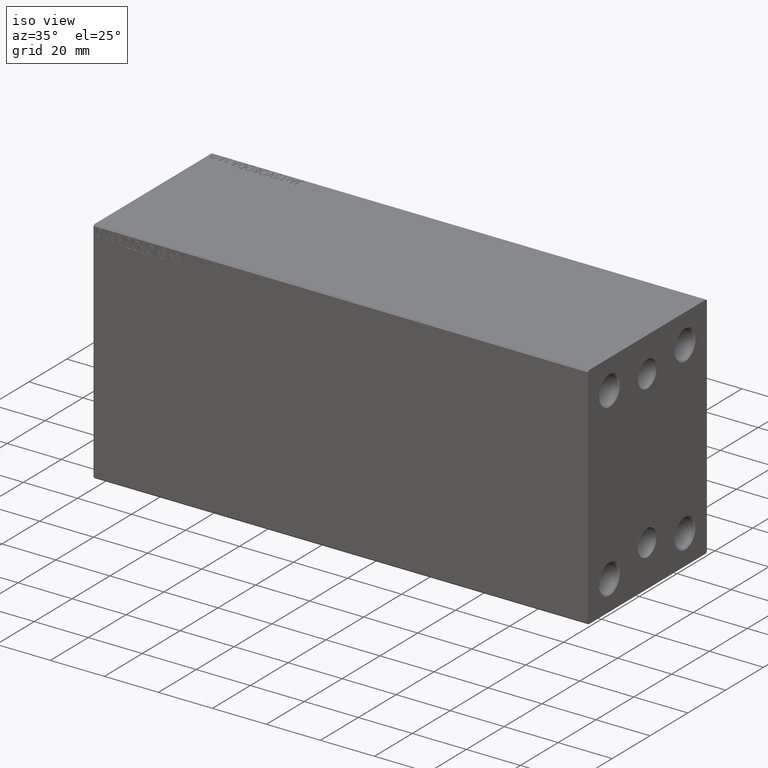
[diagram: clean part render]
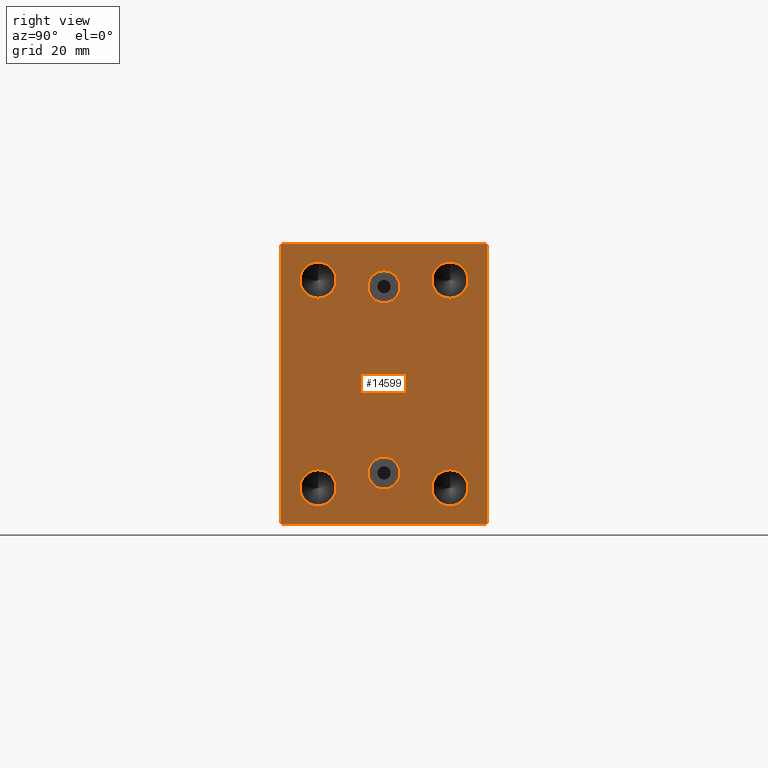
[diagram: tour spotlight — one face highlighted and labeled with its STEP entity id]
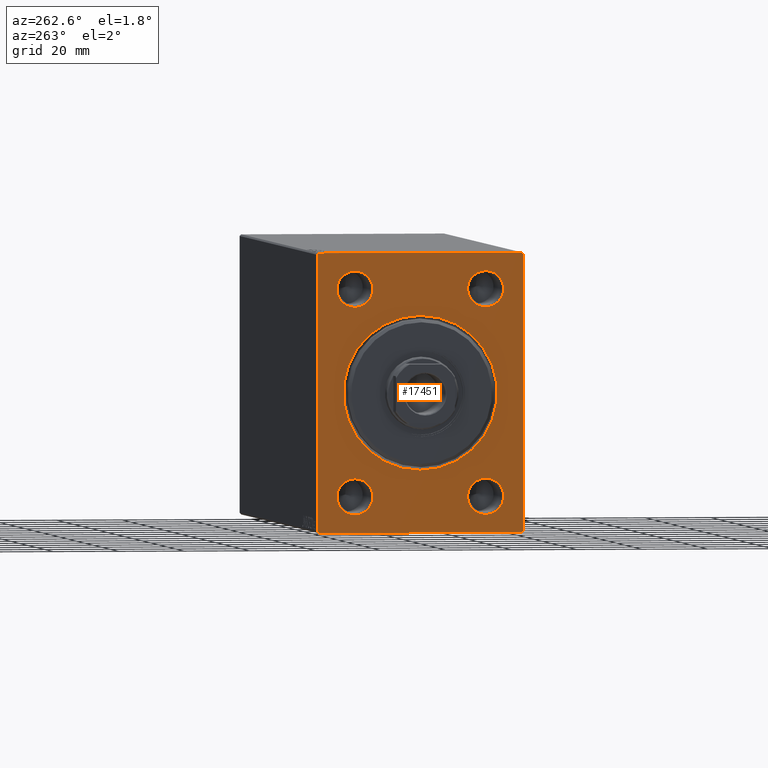
[diagram: tour spotlight — one face highlighted and labeled with its STEP entity id]
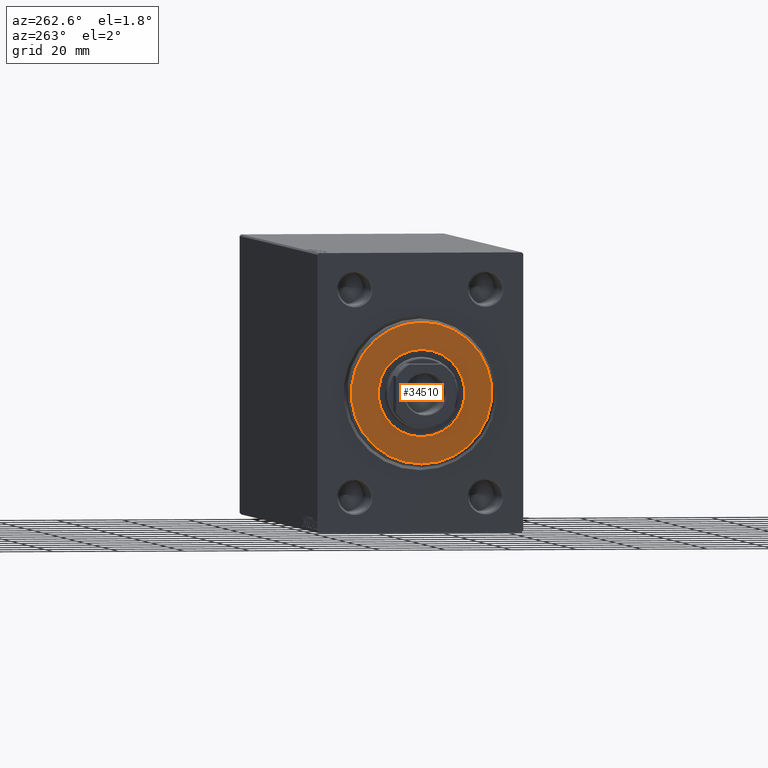
[diagram: tour spotlight — one face highlighted and labeled with its STEP entity id]
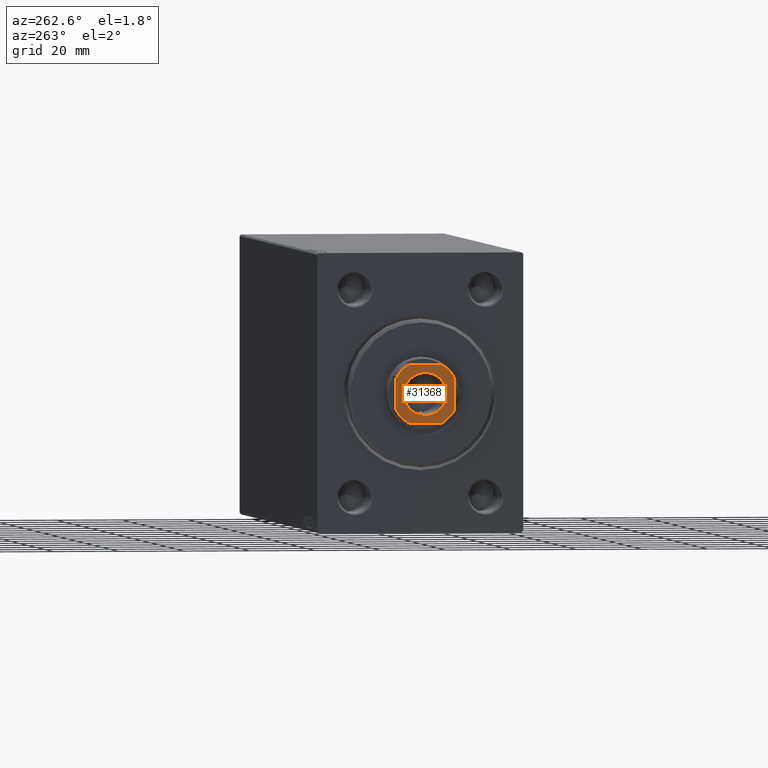
[diagram: tour spotlight — one face highlighted and labeled with its STEP entity id]
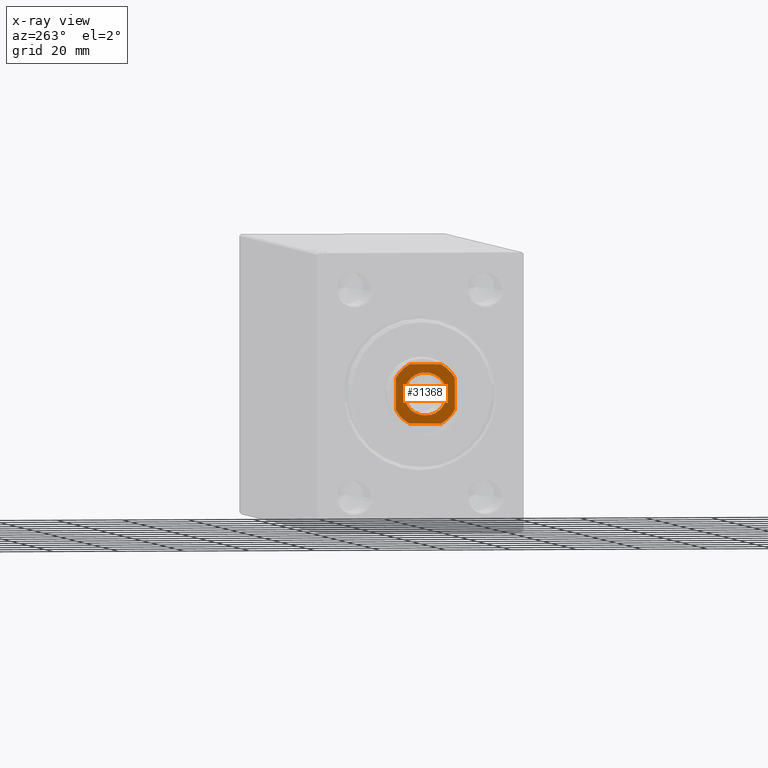
[diagram: x-ray of the same camera — body ghosted, this tour face saturated]
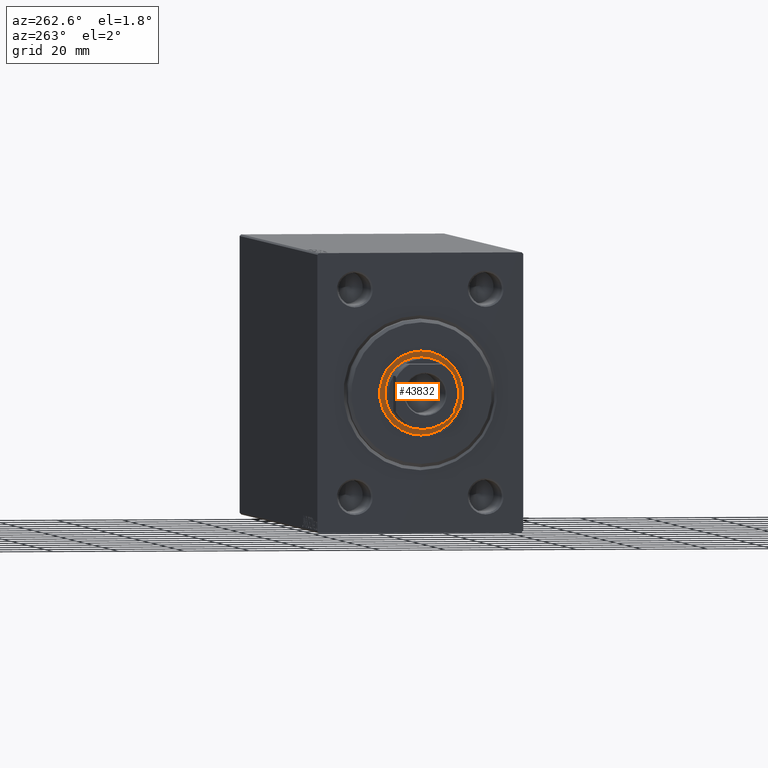
[diagram: tour spotlight — one face highlighted and labeled with its STEP entity id]
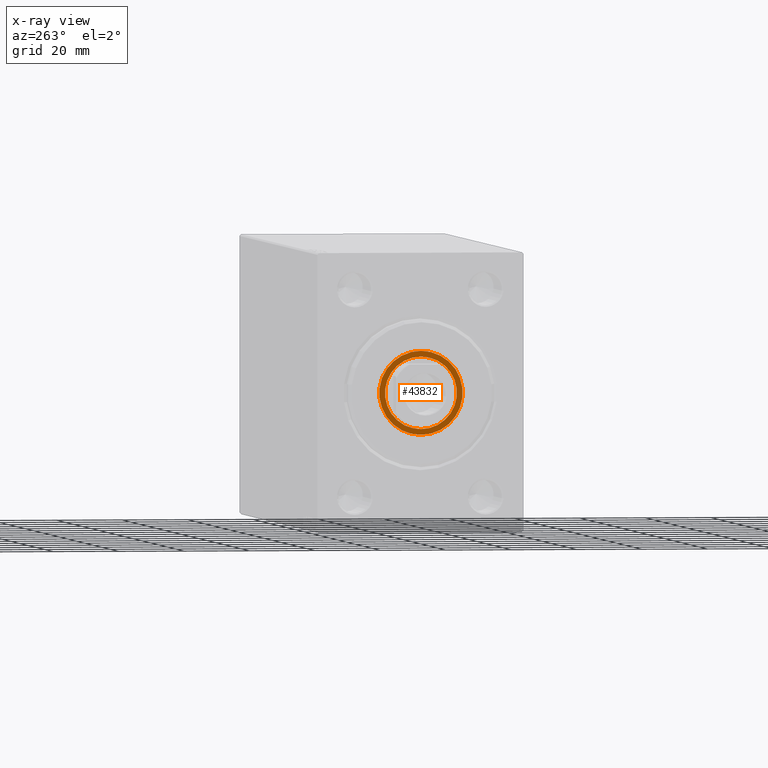
[diagram: x-ray of the same camera — body ghosted, this tour face saturated]
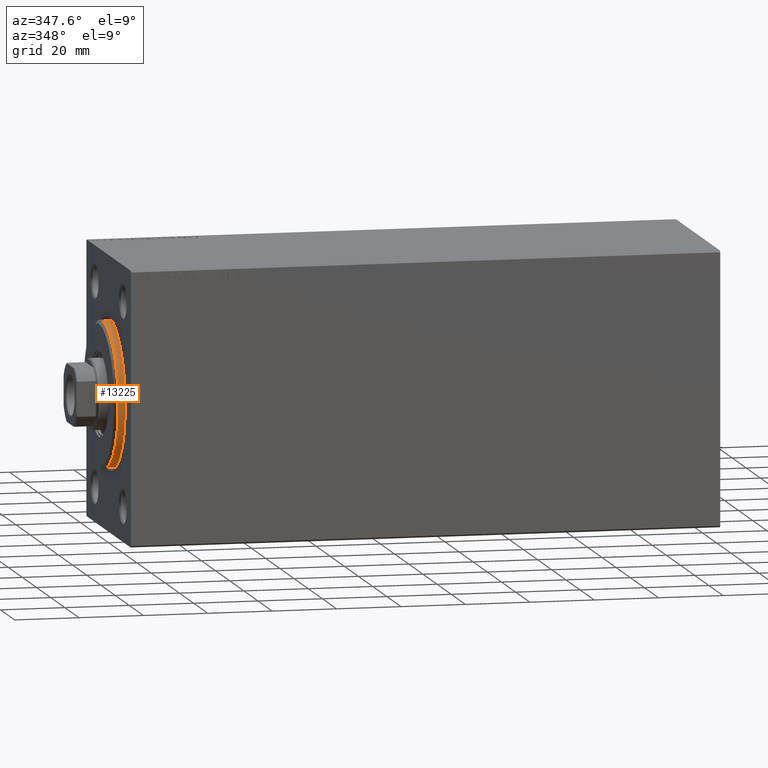
[diagram: tour spotlight — one face highlighted and labeled with its STEP entity id]
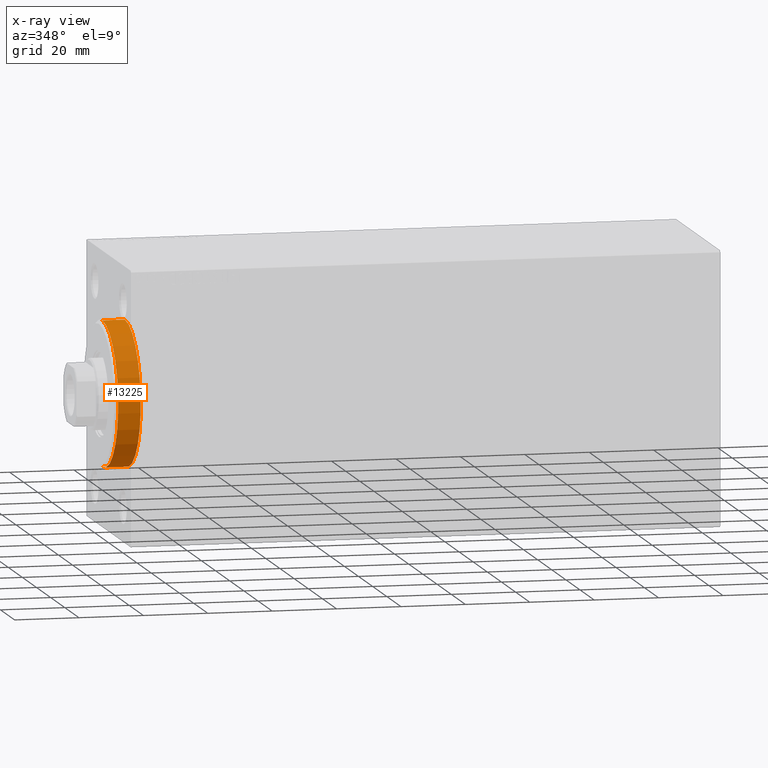
[diagram: x-ray of the same camera — body ghosted, this tour face saturated]
A machine part: a face-by-face anatomy tour. The part has 877 B-rep faces; the first image is the clean iso view, then the 6 largest visible faces are spotlighted one at a time (largest first), each with its STEP entity span.

Face 1 — right view, entity #14599. In plain terms, the highlighted planar face has unit normal (1, 0, 0).
Definition (entity closure, byte-faithful):
#729 = DIRECTION ( 'NONE',  ( 0.000000000000000000, 0.000000000000000000, -1.000000000000000000 ) ) ;
#748 = AXIS2_PLACEMENT_3D ( 'NONE', #35599, #25973, #32681 ) ;
#1002 = CARTESIAN_POINT ( 'NONE',  ( 183.0000000000000000, 31.50000000000000000, 42.00000000000002132 ) ) ;
#1151 = AXIS2_PLACEMENT_3D ( 'NONE', #37452, #17352, #10003 ) ;
#1223 = CARTESIAN_POINT ( 'NONE',  ( 183.0000000000000000, -2.976515330312223011E-15, 34.35999999999999233 ) ) ;
#1357 = FACE_OUTER_BOUND ( 'NONE', #3738, .T. ) ;
#1888 = EDGE_CURVE ( 'NONE', #39691, #18326, #30732, .T. ) ;
#1951 = ORIENTED_EDGE ( 'NONE', *, *, #32137, .T. ) ;
#2571 = ORIENTED_EDGE ( 'NONE', *, *, #25615, .F. ) ;
#2636 = CARTESIAN_POINT ( 'NONE',  ( 183.0000000000000000, 3.306546357697854128E-15, -27.00000000000000355 ) ) ;
#2657 = CARTESIAN_POINT ( 'NONE',  ( 183.0000000000000000, 31.50000000000000000, 42.49999999999999289 ) ) ;
#2726 = AXIS2_PLACEMENT_3D ( 'NONE', #13091, #36530, #33615 ) ;
#2873 = AXIS2_PLACEMENT_3D ( 'NONE', #2636, #37443, #30056 ) ;
#3104 = LINE ( 'NONE', #2657, #31882 ) ;
#3180 = EDGE_CURVE ( 'NONE', #4159, #18247, #12834, .T. ) ;
#3720 = CARTESIAN_POINT ( 'NONE',  ( 183.0000000000000000, -3.571693674697836683E-15, 24.63999999999999702 ) ) ;
#3738 = EDGE_LOOP ( 'NONE', ( #37354, #39658, #36337, #24594, #43874, #1951, #41649, #16622 ) ) ;
#3994 = VERTEX_POINT ( 'NONE', #42950 ) ;
#4159 = VERTEX_POINT ( 'NONE', #1002 ) ;
#4236 = DIRECTION ( 'NONE',  ( 1.000000000000000000, 0.000000000000000000, -0.000000000000000000 ) ) ;
#5171 = VERTEX_POINT ( 'NONE', #44030 ) ;
#5688 = EDGE_CURVE ( 'NONE', #5171, #27163, #13424, .T. ) ;
#6076 = AXIS2_PLACEMENT_3D ( 'NONE', #13662, #17667, #729 ) ;
#6119 = CARTESIAN_POINT ( 'NONE',  ( 183.0000000000000000, 19.99999999999999645, 37.00000000000003553 ) ) ;
#6139 = CARTESIAN_POINT ( 'NONE',  ( 183.0000000000000000, 36.75000000000001421, 36.75000000000001421 ) ) ;
#6179 = ORIENTED_EDGE ( 'NONE', *, *, #24145, .F. ) ;
#6894 = EDGE_CURVE ( 'NONE', #10062, #36795, #7732, .T. ) ;
#7080 = CARTESIAN_POINT ( 'NONE',  ( 183.0000000000000000, -31.50000000000000000, 42.49999999999998579 ) ) ;
#7229 = CARTESIAN_POINT ( 'NONE',  ( 183.0000000000000000, -31.50000000000000000, 42.00000000000001421 ) ) ;
#7732 = CIRCLE ( 'NONE', #15538, 5.500000000000032863 ) ;
#7792 = DIRECTION ( 'NONE',  ( 0.000000000000000000, 0.000000000000000000, 1.000000000000000000 ) ) ;
#7855 = EDGE_CURVE ( 'NONE', #10368, #24999, #14158, .T. ) ;
#8042 = FACE_BOUND ( 'NONE', #25956, .T. ) ;
#8639 = CARTESIAN_POINT ( 'NONE',  ( 183.0000000000000000, 31.00000000000002842, 42.49999999999999289 ) ) ;
#9264 = EDGE_CURVE ( 'NONE', #13183, #3994, #18411, .T. ) ;
#9358 = EDGE_LOOP ( 'NONE', ( #23334, #38606 ) ) ;
#9440 = CARTESIAN_POINT ( 'NONE',  ( 183.0000000000000000, 19.99999999999999645, -31.50000000000000000 ) ) ;
#10003 = DIRECTION ( 'NONE',  ( 0.000000000000000000, 0.000000000000000000, -1.000000000000000000 ) ) ;
#10062 = VERTEX_POINT ( 'NONE', #19130 ) ;
#10368 = VERTEX_POINT ( 'NONE', #40218 ) ;
#10817 = VECTOR ( 'NONE', #35415, 999.9999999999998863 ) ;
#11023 = CARTESIAN_POINT ( 'NONE',  ( 183.0000000000000000, 19.99999999999999645, -31.50000000000000000 ) ) ;
#11150 = CARTESIAN_POINT ( 'NONE',  ( 183.0000000000000000, 3.306546357697854128E-15, -27.00000000000000355 ) ) ;
#11184 = VERTEX_POINT ( 'NONE', #1223 ) ;
#11404 = FACE_BOUND ( 'NONE', #33450, .T. ) ;
#11445 = CIRCLE ( 'NONE', #748, 5.500000000000032863 ) ;
#11615 = CARTESIAN_POINT ( 'NONE',  ( 183.0000000000000000, 0.000000000000000000, 0.000000000000000000 ) ) ;
#11658 = CARTESIAN_POINT ( 'NONE',  ( 183.0000000000000000, -31.50000000000000000, -42.50000000000000711 ) ) ;
#11667 = DIRECTION ( 'NONE',  ( 0.000000000000000000, 0.000000000000000000, -1.000000000000000000 ) ) ;
#12638 = VERTEX_POINT ( 'NONE', #38562 ) ;
#12806 = VERTEX_POINT ( 'NONE', #16857 ) ;
#12834 = LINE ( 'NONE', #6139, #42608 ) ;
#13091 = CARTESIAN_POINT ( 'NONE',  ( 183.0000000000000000, -20.00000000000000355, -31.50000000000000000 ) ) ;
#13183 = VERTEX_POINT ( 'NONE', #27510 ) ;
#13424 = CIRCLE ( 'NONE', #2726, 5.500000000000032863 ) ;
#13602 = CIRCLE ( 'NONE', #17169, 4.859999999999995879 ) ;
#13662 = CARTESIAN_POINT ( 'NONE',  ( 183.0000000000000000, -20.00000000000000355, 31.50000000000000000 ) ) ;
#13762 = VERTEX_POINT ( 'NONE', #3720 ) ;
#14158 = CIRCLE ( 'NONE', #2873, 4.859999999999995879 ) ;
#14212 = EDGE_CURVE ( 'NONE', #12806, #36546, #22084, .T. ) ;
#14561 = DIRECTION ( 'NONE',  ( 0.000000000000000000, 1.000000000000000000, 0.000000000000000000 ) ) ;
#14599 = ADVANCED_FACE ( 'NONE', ( #11404, #25415, #24989, #8042, #21630, #35258, #1357 ), #14950, .T. ) ;
#14790 = DIRECTION ( 'NONE',  ( 1.000000000000000000, -0.000000000000000000, -0.000000000000000000 ) ) ;
#14851 = EDGE_CURVE ( 'NONE', #36795, #10062, #11445, .T. ) ;
#14950 = PLANE ( 'NONE',  #27826 ) ;
#15306 = DIRECTION ( 'NONE',  ( 0.000000000000000000, 0.000000000000000000, -1.000000000000000000 ) ) ;
#15538 = AXIS2_PLACEMENT_3D ( 'NONE', #33563, #33119, #36698 ) ;
#15982 = CARTESIAN_POINT ( 'NONE',  ( 183.0000000000000000, -31.00000000000000000, -42.50000000000000711 ) ) ;
#16239 = EDGE_CURVE ( 'NONE', #24999, #10368, #13602, .T. ) ;
#16240 = ORIENTED_EDGE ( 'NONE', *, *, #7855, .F. ) ;
#16530 = CARTESIAN_POINT ( 'NONE',  ( 183.0000000000000000, -20.00000000000000355, -31.50000000000000000 ) ) ;
#16622 = ORIENTED_EDGE ( 'NONE', *, *, #3180, .T. ) ;
#16857 = CARTESIAN_POINT ( 'NONE',  ( 183.0000000000000000, -20.00000000000000355, 37.00000000000003553 ) ) ;
#16919 = EDGE_CURVE ( 'NONE', #12638, #4159, #32537, .T. ) ;
#17169 = AXIS2_PLACEMENT_3D ( 'NONE', #11150, #4236, #7792 ) ;
#17352 = DIRECTION ( 'NONE',  ( 1.000000000000000000, 0.000000000000000000, 0.000000000000000000 ) ) ;
#17667 = DIRECTION ( 'NONE',  ( 1.000000000000000000, -0.000000000000000000, -0.000000000000000000 ) ) ;
#17703 = DIRECTION ( 'NONE',  ( 0.000000000000000000, 0.000000000000000000, -1.000000000000000000 ) ) ;
#18201 = EDGE_CURVE ( 'NONE', #18326, #22956, #22005, .T. ) ;
#18247 = VERTEX_POINT ( 'NONE', #8639 ) ;
#18326 = VERTEX_POINT ( 'NONE', #30255 ) ;
#18411 = CIRCLE ( 'NONE', #21963, 5.500000000000032863 ) ;
#18538 = CARTESIAN_POINT ( 'NONE',  ( 183.0000000000000000, 36.75000000000001421, -36.75000000000001421 ) ) ;
#18670 = CARTESIAN_POINT ( 'NONE',  ( 183.0000000000000000, -36.75000000000022737, -36.74999999999971578 ) ) ;
#19130 = CARTESIAN_POINT ( 'NONE',  ( 183.0000000000000000, 19.99999999999999645, 25.99999999999996447 ) ) ;
#19366 = ORIENTED_EDGE ( 'NONE', *, *, #34582, .F. ) ;
#19464 = AXIS2_PLACEMENT_3D ( 'NONE', #29347, #36729, #15306 ) ;
#19585 = DIRECTION ( 'NONE',  ( 0.000000000000000000, -1.000000000000000000, -1.101411730778925171E-16 ) ) ;
#19725 = DIRECTION ( 'NONE',  ( -0.000000000000000000, -0.7071067811865474617, 0.7071067811865474617 ) ) ;
#20135 = AXIS2_PLACEMENT_3D ( 'NONE', #16530, #40409, #43532 ) ;
#21210 = EDGE_LOOP ( 'NONE', ( #2571, #31654 ) ) ;
#21468 = CARTESIAN_POINT ( 'NONE',  ( 183.0000000000000000, -20.00000000000000355, 31.50000000000000000 ) ) ;
#21630 = FACE_BOUND ( 'NONE', #21210, .T. ) ;
#21963 = AXIS2_PLACEMENT_3D ( 'NONE', #9440, #40010, #23480 ) ;
#22005 = LINE ( 'NONE', #18670, #10817 ) ;
#22084 = CIRCLE ( 'NONE', #31393, 5.500000000000032863 ) ;
#22956 = VERTEX_POINT ( 'NONE', #15982 ) ;
#23334 = ORIENTED_EDGE ( 'NONE', *, *, #9264, .F. ) ;
#23480 = DIRECTION ( 'NONE',  ( 0.000000000000000000, 0.000000000000000000, -1.000000000000000000 ) ) ;
#24145 = EDGE_CURVE ( 'NONE', #13762, #11184, #42984, .T. ) ;
#24252 = ORIENTED_EDGE ( 'NONE', *, *, #16239, .F. ) ;
#24457 = CARTESIAN_POINT ( 'NONE',  ( 183.0000000000000000, -20.00000000000000355, 25.99999999999996447 ) ) ;
#24478 = ORIENTED_EDGE ( 'NONE', *, *, #6894, .F. ) ;
#24594 = ORIENTED_EDGE ( 'NONE', *, *, #18201, .T. ) ;
#24989 = FACE_BOUND ( 'NONE', #36924, .T. ) ;
#24999 = VERTEX_POINT ( 'NONE', #42753 ) ;
#25273 = VECTOR ( 'NONE', #37754, 1000.000000000000114 ) ;
#25302 = CIRCLE ( 'NONE', #6076, 5.500000000000032863 ) ;
#25415 = FACE_BOUND ( 'NONE', #34561, .T. ) ;
#25510 = CARTESIAN_POINT ( 'NONE',  ( 183.0000000000000000, -31.00000000000002842, 42.49999999999998579 ) ) ;
#25615 = EDGE_CURVE ( 'NONE', #27163, #5171, #37984, .T. ) ;
#25956 = EDGE_LOOP ( 'NONE', ( #34969, #28605 ) ) ;
#25973 = DIRECTION ( 'NONE',  ( 1.000000000000000000, -0.000000000000000000, -0.000000000000000000 ) ) ;
#26713 = VERTEX_POINT ( 'NONE', #26871 ) ;
#26871 = CARTESIAN_POINT ( 'NONE',  ( 183.0000000000000000, 31.00000000000001421, -42.50000000000000711 ) ) ;
#27163 = VERTEX_POINT ( 'NONE', #32269 ) ;
#27510 = CARTESIAN_POINT ( 'NONE',  ( 183.0000000000000000, 19.99999999999999645, -25.99999999999996447 ) ) ;
#27580 = AXIS2_PLACEMENT_3D ( 'NONE', #11023, #14790, #17703 ) ;
#27826 = AXIS2_PLACEMENT_3D ( 'NONE', #11615, #28564, #42174 ) ;
#27920 = LINE ( 'NONE', #28136, #25273 ) ;
#28136 = CARTESIAN_POINT ( 'NONE',  ( 183.0000000000000000, -36.75000000000001421, 36.75000000000001421 ) ) ;
#28564 = DIRECTION ( 'NONE',  ( 1.000000000000000000, 0.000000000000000000, 0.000000000000000000 ) ) ;
#28605 = ORIENTED_EDGE ( 'NONE', *, *, #32044, .F. ) ;
#29347 = CARTESIAN_POINT ( 'NONE',  ( 183.0000000000000000, -3.571693674697836683E-15, 29.50000000000000000 ) ) ;
#30056 = DIRECTION ( 'NONE',  ( 0.000000000000000000, 0.000000000000000000, 1.000000000000000000 ) ) ;
#30255 = CARTESIAN_POINT ( 'NONE',  ( 183.0000000000000000, -31.50000000000000000, -42.00000000000000000 ) ) ;
#30732 = LINE ( 'NONE', #7080, #39794 ) ;
#31393 = AXIS2_PLACEMENT_3D ( 'NONE', #21468, #42220, #11667 ) ;
#31593 = EDGE_CURVE ( 'NONE', #37657, #39691, #27920, .T. ) ;
#31654 = ORIENTED_EDGE ( 'NONE', *, *, #5688, .F. ) ;
#31724 = VECTOR ( 'NONE', #32160, 1000.000000000000114 ) ;
#31849 = CIRCLE ( 'NONE', #27580, 5.500000000000032863 ) ;
#31882 = VECTOR ( 'NONE', #19585, 1000.000000000000000 ) ;
#32044 = EDGE_CURVE ( 'NONE', #36546, #12806, #25302, .T. ) ;
#32137 = EDGE_CURVE ( 'NONE', #26713, #12638, #35723, .T. ) ;
#32160 = DIRECTION ( 'NONE',  ( -0.000000000000000000, 0.7071067811865474617, 0.7071067811865474617 ) ) ;
#32269 = CARTESIAN_POINT ( 'NONE',  ( 183.0000000000000000, -20.00000000000000355, -25.99999999999996447 ) ) ;
#32537 = LINE ( 'NONE', #35893, #42112 ) ;
#32681 = DIRECTION ( 'NONE',  ( 0.000000000000000000, 0.000000000000000000, -1.000000000000000000 ) ) ;
#33119 = DIRECTION ( 'NONE',  ( 1.000000000000000000, -0.000000000000000000, -0.000000000000000000 ) ) ;
#33450 = EDGE_LOOP ( 'NONE', ( #6179, #19366 ) ) ;
#33563 = CARTESIAN_POINT ( 'NONE',  ( 183.0000000000000000, 19.99999999999999645, 31.50000000000000000 ) ) ;
#33615 = DIRECTION ( 'NONE',  ( 0.000000000000000000, 0.000000000000000000, -1.000000000000000000 ) ) ;
#34561 = EDGE_LOOP ( 'NONE', ( #24252, #16240 ) ) ;
#34582 = EDGE_CURVE ( 'NONE', #11184, #13762, #42463, .T. ) ;
#34969 = ORIENTED_EDGE ( 'NONE', *, *, #14212, .F. ) ;
#35258 = FACE_BOUND ( 'NONE', #9358, .T. ) ;
#35415 = DIRECTION ( 'NONE',  ( -0.000000000000000000, 0.7071067811865425767, -0.7071067811865525687 ) ) ;
#35599 = CARTESIAN_POINT ( 'NONE',  ( 183.0000000000000000, 19.99999999999999645, 31.50000000000000000 ) ) ;
#35723 = LINE ( 'NONE', #18538, #31724 ) ;
#35893 = CARTESIAN_POINT ( 'NONE',  ( 183.0000000000000000, 31.50000000000001421, -42.50000000000000711 ) ) ;
#35963 = LINE ( 'NONE', #11658, #41219 ) ;
#36337 = ORIENTED_EDGE ( 'NONE', *, *, #1888, .T. ) ;
#36530 = DIRECTION ( 'NONE',  ( 1.000000000000000000, -0.000000000000000000, -0.000000000000000000 ) ) ;
#36546 = VERTEX_POINT ( 'NONE', #24457 ) ;
#36698 = DIRECTION ( 'NONE',  ( 0.000000000000000000, 0.000000000000000000, -1.000000000000000000 ) ) ;
#36729 = DIRECTION ( 'NONE',  ( 1.000000000000000000, 0.000000000000000000, 0.000000000000000000 ) ) ;
#36795 = VERTEX_POINT ( 'NONE', #6119 ) ;
#36924 = EDGE_LOOP ( 'NONE', ( #40527, #24478 ) ) ;
#36939 = EDGE_CURVE ( 'NONE', #3994, #13183, #31849, .T. ) ;
#37354 = ORIENTED_EDGE ( 'NONE', *, *, #38271, .T. ) ;
#37440 = DIRECTION ( 'NONE',  ( 0.000000000000000000, 0.000000000000000000, -1.000000000000000000 ) ) ;
#37443 = DIRECTION ( 'NONE',  ( 1.000000000000000000, 0.000000000000000000, -0.000000000000000000 ) ) ;
#37452 = CARTESIAN_POINT ( 'NONE',  ( 183.0000000000000000, -3.571693674697836683E-15, 29.50000000000000000 ) ) ;
#37657 = VERTEX_POINT ( 'NONE', #25510 ) ;
#37754 = DIRECTION ( 'NONE',  ( 0.000000000000000000, -0.7071067811865474617, -0.7071067811865474617 ) ) ;
#37984 = CIRCLE ( 'NONE', #20135, 5.500000000000032863 ) ;
#38271 = EDGE_CURVE ( 'NONE', #18247, #37657, #3104, .T. ) ;
#38382 = DIRECTION ( 'NONE',  ( 0.000000000000000000, -1.632680918566406547E-16, 1.000000000000000000 ) ) ;
#38562 = CARTESIAN_POINT ( 'NONE',  ( 183.0000000000000000, 31.50000000000001421, -42.00000000000000711 ) ) ;
#38606 = ORIENTED_EDGE ( 'NONE', *, *, #36939, .F. ) ;
#39658 = ORIENTED_EDGE ( 'NONE', *, *, #31593, .T. ) ;
#39691 = VERTEX_POINT ( 'NONE', #7229 ) ;
#39794 = VECTOR ( 'NONE', #37440, 1000.000000000000000 ) ;
#40010 = DIRECTION ( 'NONE',  ( 1.000000000000000000, -0.000000000000000000, -0.000000000000000000 ) ) ;
#40218 = CARTESIAN_POINT ( 'NONE',  ( 183.0000000000000000, 3.901724702083467405E-15, -22.14000000000000767 ) ) ;
#40409 = DIRECTION ( 'NONE',  ( 1.000000000000000000, -0.000000000000000000, -0.000000000000000000 ) ) ;
#40527 = ORIENTED_EDGE ( 'NONE', *, *, #14851, .F. ) ;
#41219 = VECTOR ( 'NONE', #14561, 1000.000000000000000 ) ;
#41649 = ORIENTED_EDGE ( 'NONE', *, *, #16919, .T. ) ;
#42112 = VECTOR ( 'NONE', #38382, 1000.000000000000000 ) ;
#42174 = DIRECTION ( 'NONE',  ( 0.000000000000000000, 0.000000000000000000, -1.000000000000000000 ) ) ;
#42220 = DIRECTION ( 'NONE',  ( 1.000000000000000000, -0.000000000000000000, -0.000000000000000000 ) ) ;
#42463 = CIRCLE ( 'NONE', #1151, 4.859999999999999432 ) ;
#42608 = VECTOR ( 'NONE', #19725, 1000.000000000000114 ) ;
#42753 = CARTESIAN_POINT ( 'NONE',  ( 183.0000000000000000, 3.306546357697854128E-15, -31.85999999999999943 ) ) ;
#42950 = CARTESIAN_POINT ( 'NONE',  ( 183.0000000000000000, 19.99999999999999645, -37.00000000000003553 ) ) ;
#42984 = CIRCLE ( 'NONE', #19464, 4.859999999999999432 ) ;
#43532 = DIRECTION ( 'NONE',  ( 0.000000000000000000, 0.000000000000000000, -1.000000000000000000 ) ) ;
#43653 = EDGE_CURVE ( 'NONE', #22956, #26713, #35963, .T. ) ;
#43874 = ORIENTED_EDGE ( 'NONE', *, *, #43653, .T. ) ;
#44030 = CARTESIAN_POINT ( 'NONE',  ( 183.0000000000000000, -20.00000000000000355, -37.00000000000003553 ) ) ;

Face 2 — auxiliary view, entity #17451. In plain terms, the highlighted planar face has unit normal (1, 0, 0).
Definition (entity closure, byte-faithful):
#392 = DIRECTION ( 'NONE',  ( -0.000000000000000000, 0.7071067811865474617, 0.7071067811865474617 ) ) ;
#755 = DIRECTION ( 'NONE',  ( 1.000000000000000000, 0.000000000000000000, 0.000000000000000000 ) ) ;
#886 = CARTESIAN_POINT ( 'NONE',  ( 0.000000000000000000, 0.000000000000000000, 0.000000000000000000 ) ) ;
#2684 = EDGE_CURVE ( 'NONE', #39214, #24823, #6292, .T. ) ;
#2755 = AXIS2_PLACEMENT_3D ( 'NONE', #41979, #17447, #24583 ) ;
#2870 = ORIENTED_EDGE ( 'NONE', *, *, #20777, .T. ) ;
#2989 = CARTESIAN_POINT ( 'NONE',  ( 0.000000000000000000, 31.50000000000000000, 42.00000000000002132 ) ) ;
#2996 = CARTESIAN_POINT ( 'NONE',  ( 0.000000000000000000, -20.00000000000000355, 25.99999999999996803 ) ) ;
#3569 = EDGE_CURVE ( 'NONE', #4251, #39442, #32005, .T. ) ;
#3758 = CARTESIAN_POINT ( 'NONE',  ( 0.000000000000000000, 19.99999999999999645, -25.99999999999996803 ) ) ;
#3797 = DIRECTION ( 'NONE',  ( 1.000000000000000000, 0.000000000000000000, 0.000000000000000000 ) ) ;
#4251 = VERTEX_POINT ( 'NONE', #28211 ) ;
#4876 = DIRECTION ( 'NONE',  ( 1.000000000000000000, 0.000000000000000000, 0.000000000000000000 ) ) ;
#4887 = DIRECTION ( 'NONE',  ( 1.000000000000000000, 0.000000000000000000, 0.000000000000000000 ) ) ;
#4988 = DIRECTION ( 'NONE',  ( -0.000000000000000000, -0.7071067811865425767, 0.7071067811865525687 ) ) ;
#5203 = CARTESIAN_POINT ( 'NONE',  ( 0.000000000000000000, 31.50000000000001421, -42.00000000000000711 ) ) ;
#5428 = CARTESIAN_POINT ( 'NONE',  ( 0.000000000000000000, 19.99999999999999645, -31.50000000000000000 ) ) ;
#5432 = FACE_BOUND ( 'NONE', #26366, .T. ) ;
#5437 = CARTESIAN_POINT ( 'NONE',  ( 0.000000000000000000, 19.99999999999999645, -37.00000000000003553 ) ) ;
#5573 = CIRCLE ( 'NONE', #11309, 5.500000000000032863 ) ;
#5626 = ORIENTED_EDGE ( 'NONE', *, *, #11653, .T. ) ;
#5720 = EDGE_CURVE ( 'NONE', #32402, #24830, #5573, .T. ) ;
#5773 = ORIENTED_EDGE ( 'NONE', *, *, #15521, .F. ) ;
#5792 = AXIS2_PLACEMENT_3D ( 'NONE', #35014, #4887, #22260 ) ;
#6292 = CIRCLE ( 'NONE', #14862, 23.49999999999996092 ) ;
#6343 = VECTOR ( 'NONE', #38814, 1000.000000000000114 ) ;
#6935 = CIRCLE ( 'NONE', #20455, 5.500000000000032863 ) ;
#7207 = DIRECTION ( 'NONE',  ( 0.000000000000000000, 0.000000000000000000, -1.000000000000000000 ) ) ;
#7863 = CARTESIAN_POINT ( 'NONE',  ( 0.000000000000000000, -20.00000000000000355, 31.50000000000000000 ) ) ;
#8274 = EDGE_CURVE ( 'NONE', #34594, #42553, #8564, .T. ) ;
#8372 = CARTESIAN_POINT ( 'NONE',  ( 0.000000000000000000, -20.00000000000000355, -25.99999999999996803 ) ) ;
#8399 = DIRECTION ( 'NONE',  ( 0.000000000000000000, 0.000000000000000000, -1.000000000000000000 ) ) ;
#8564 = CIRCLE ( 'NONE', #22081, 5.500000000000032863 ) ;
#8838 = DIRECTION ( 'NONE',  ( 1.000000000000000000, 0.000000000000000000, 0.000000000000000000 ) ) ;
#8983 = EDGE_CURVE ( 'NONE', #34939, #30421, #19963, .T. ) ;
#10151 = ORIENTED_EDGE ( 'NONE', *, *, #11474, .T. ) ;
#10334 = ORIENTED_EDGE ( 'NONE', *, *, #8983, .F. ) ;
#10596 = LINE ( 'NONE', #41149, #33529 ) ;
#10685 = CARTESIAN_POINT ( 'NONE',  ( 0.000000000000000000, 19.99999999999999645, 25.99999999999996803 ) ) ;
#11039 = DIRECTION ( 'NONE',  ( 0.000000000000000000, -1.000000000000000000, -1.101411730778925171E-16 ) ) ;
#11157 = CARTESIAN_POINT ( 'NONE',  ( 0.000000000000000000, 19.99999999999999645, 37.00000000000003553 ) ) ;
#11309 = AXIS2_PLACEMENT_3D ( 'NONE', #40531, #30262, #29367 ) ;
#11474 = EDGE_CURVE ( 'NONE', #24830, #32402, #39821, .T. ) ;
#11543 = EDGE_CURVE ( 'NONE', #40919, #12704, #14280, .T. ) ;
#11592 = LINE ( 'NONE', #22046, #6343 ) ;
#11653 = EDGE_CURVE ( 'NONE', #23295, #30421, #11592, .T. ) ;
#12348 = FACE_BOUND ( 'NONE', #41626, .T. ) ;
#12446 = VERTEX_POINT ( 'NONE', #32386 ) ;
#12704 = VERTEX_POINT ( 'NONE', #37683 ) ;
#12772 = CARTESIAN_POINT ( 'NONE',  ( 0.000000000000000000, -31.00000000000000000, -42.50000000000000711 ) ) ;
#13409 = AXIS2_PLACEMENT_3D ( 'NONE', #34355, #3797, #17389 ) ;
#13476 = ORIENTED_EDGE ( 'NONE', *, *, #42136, .T. ) ;
#13614 = DIRECTION ( 'NONE',  ( 1.000000000000000000, 0.000000000000000000, 0.000000000000000000 ) ) ;
#13798 = CARTESIAN_POINT ( 'NONE',  ( 0.000000000000000000, 2.877919977996275587E-15, -23.49999999999996092 ) ) ;
#13837 = ORIENTED_EDGE ( 'NONE', *, *, #18663, .T. ) ;
#13984 = VERTEX_POINT ( 'NONE', #40249 ) ;
#14112 = DIRECTION ( 'NONE',  ( 1.000000000000000000, 0.000000000000000000, 0.000000000000000000 ) ) ;
#14280 = LINE ( 'NONE', #27895, #41253 ) ;
#14615 = VECTOR ( 'NONE', #392, 1000.000000000000114 ) ;
#14862 = AXIS2_PLACEMENT_3D ( 'NONE', #886, #4876, #35664 ) ;
#15210 = DIRECTION ( 'NONE',  ( 0.000000000000000000, 0.000000000000000000, -1.000000000000000000 ) ) ;
#15466 = CARTESIAN_POINT ( 'NONE',  ( 0.000000000000000000, -31.50000000000000000, -42.00000000000000000 ) ) ;
#15521 = EDGE_CURVE ( 'NONE', #23295, #32353, #10596, .T. ) ;
#15544 = ORIENTED_EDGE ( 'NONE', *, *, #15655, .T. ) ;
#15655 = EDGE_CURVE ( 'NONE', #40919, #21155, #32211, .T. ) ;
#15895 = FACE_OUTER_BOUND ( 'NONE', #31575, .T. ) ;
#16115 = DIRECTION ( 'NONE',  ( 0.000000000000000000, 0.000000000000000000, -1.000000000000000000 ) ) ;
#16284 = DIRECTION ( 'NONE',  ( 0.000000000000000000, 0.000000000000000000, -1.000000000000000000 ) ) ;
#16344 = FACE_BOUND ( 'NONE', #38847, .T. ) ;
#16902 = EDGE_CURVE ( 'NONE', #24823, #39214, #22147, .T. ) ;
#17371 = CARTESIAN_POINT ( 'NONE',  ( 0.000000000000000000, 0.000000000000000000, 23.49999999999996092 ) ) ;
#17389 = DIRECTION ( 'NONE',  ( 0.000000000000000000, 0.000000000000000000, -1.000000000000000000 ) ) ;
#17447 = DIRECTION ( 'NONE',  ( 1.000000000000000000, 0.000000000000000000, 0.000000000000000000 ) ) ;
#17451 = ADVANCED_FACE ( 'NONE', ( #5432, #12348, #25941, #16344, #39569, #15895 ), #33083, .F. ) ;
#17995 = AXIS2_PLACEMENT_3D ( 'NONE', #25780, #8838, #8399 ) ;
#18155 = CARTESIAN_POINT ( 'NONE',  ( 0.000000000000000000, -31.00000000000000000, -42.50000000000000711 ) ) ;
#18663 = EDGE_CURVE ( 'NONE', #25345, #12446, #27204, .T. ) ;
#19027 = DIRECTION ( 'NONE',  ( 1.000000000000000000, 0.000000000000000000, 0.000000000000000000 ) ) ;
#19248 = VECTOR ( 'NONE', #43622, 1000.000000000000000 ) ;
#19924 = ORIENTED_EDGE ( 'NONE', *, *, #5720, .T. ) ;
#19963 = LINE ( 'NONE', #30006, #19248 ) ;
#20290 = CARTESIAN_POINT ( 'NONE',  ( 0.000000000000000000, 19.99999999999999645, 31.50000000000000000 ) ) ;
#20410 = CARTESIAN_POINT ( 'NONE',  ( 0.000000000000000000, 31.50000000000001421, -42.00000000000000711 ) ) ;
#20455 = AXIS2_PLACEMENT_3D ( 'NONE', #7863, #14112, #7207 ) ;
#20777 = EDGE_CURVE ( 'NONE', #42553, #34594, #25123, .T. ) ;
#21155 = VERTEX_POINT ( 'NONE', #15466 ) ;
#21703 = DIRECTION ( 'NONE',  ( 0.000000000000000000, -0.7071067811865474617, -0.7071067811865474617 ) ) ;
#21714 = DIRECTION ( 'NONE',  ( 0.000000000000000000, 0.000000000000000000, -1.000000000000000000 ) ) ;
#22046 = CARTESIAN_POINT ( 'NONE',  ( 0.000000000000000000, 31.00000000000002842, 42.49999999999999289 ) ) ;
#22081 = AXIS2_PLACEMENT_3D ( 'NONE', #5428, #25074, #21714 ) ;
#22147 = CIRCLE ( 'NONE', #5792, 23.49999999999996092 ) ;
#22260 = DIRECTION ( 'NONE',  ( 0.000000000000000000, 0.000000000000000000, -1.000000000000000000 ) ) ;
#22587 = CARTESIAN_POINT ( 'NONE',  ( 0.000000000000000000, 0.000000000000000000, 0.000000000000000000 ) ) ;
#22950 = EDGE_LOOP ( 'NONE', ( #33406, #2870 ) ) ;
#23295 = VERTEX_POINT ( 'NONE', #38197 ) ;
#23421 = CARTESIAN_POINT ( 'NONE',  ( 0.000000000000000000, -31.50000000000000000, 42.49999999999998579 ) ) ;
#23584 = EDGE_CURVE ( 'NONE', #13984, #21155, #40169, .T. ) ;
#24583 = DIRECTION ( 'NONE',  ( 0.000000000000000000, 0.000000000000000000, -1.000000000000000000 ) ) ;
#24823 = VERTEX_POINT ( 'NONE', #13798 ) ;
#24830 = VERTEX_POINT ( 'NONE', #10685 ) ;
#25074 = DIRECTION ( 'NONE',  ( 1.000000000000000000, 0.000000000000000000, 0.000000000000000000 ) ) ;
#25123 = CIRCLE ( 'NONE', #17995, 5.500000000000032863 ) ;
#25345 = VERTEX_POINT ( 'NONE', #2996 ) ;
#25366 = ORIENTED_EDGE ( 'NONE', *, *, #41485, .T. ) ;
#25400 = ORIENTED_EDGE ( 'NONE', *, *, #37840, .T. ) ;
#25716 = AXIS2_PLACEMENT_3D ( 'NONE', #22587, #19027, #16115 ) ;
#25780 = CARTESIAN_POINT ( 'NONE',  ( 0.000000000000000000, 19.99999999999999645, -31.50000000000000000 ) ) ;
#25941 = FACE_BOUND ( 'NONE', #27486, .T. ) ;
#26108 = VECTOR ( 'NONE', #21703, 1000.000000000000114 ) ;
#26244 = ORIENTED_EDGE ( 'NONE', *, *, #2684, .T. ) ;
#26366 = EDGE_LOOP ( 'NONE', ( #26244, #41342 ) ) ;
#27166 = LINE ( 'NONE', #37665, #14615 ) ;
#27204 = CIRCLE ( 'NONE', #37891, 5.500000000000032863 ) ;
#27486 = EDGE_LOOP ( 'NONE', ( #25400, #13837 ) ) ;
#27719 = AXIS2_PLACEMENT_3D ( 'NONE', #20290, #13614, #34143 ) ;
#27895 = CARTESIAN_POINT ( 'NONE',  ( 0.000000000000000000, -31.50000000000000000, -42.50000000000000711 ) ) ;
#28211 = CARTESIAN_POINT ( 'NONE',  ( 0.000000000000000000, -20.00000000000000355, -37.00000000000003553 ) ) ;
#28538 = VECTOR ( 'NONE', #4988, 999.9999999999998863 ) ;
#29054 = LINE ( 'NONE', #5203, #26108 ) ;
#29367 = DIRECTION ( 'NONE',  ( 0.000000000000000000, 0.000000000000000000, -1.000000000000000000 ) ) ;
#29826 = ORIENTED_EDGE ( 'NONE', *, *, #11543, .F. ) ;
#30006 = CARTESIAN_POINT ( 'NONE',  ( 0.000000000000000000, 31.50000000000001421, -42.50000000000000711 ) ) ;
#30262 = DIRECTION ( 'NONE',  ( 1.000000000000000000, 0.000000000000000000, 0.000000000000000000 ) ) ;
#30421 = VERTEX_POINT ( 'NONE', #2989 ) ;
#30519 = CIRCLE ( 'NONE', #13409, 5.500000000000032863 ) ;
#31575 = EDGE_LOOP ( 'NONE', ( #43584, #42492, #5773, #5626, #10334, #25366, #29826, #15544 ) ) ;
#31677 = EDGE_CURVE ( 'NONE', #13984, #32353, #27166, .T. ) ;
#32005 = CIRCLE ( 'NONE', #2755, 5.500000000000032863 ) ;
#32211 = LINE ( 'NONE', #18155, #28538 ) ;
#32353 = VERTEX_POINT ( 'NONE', #34139 ) ;
#32386 = CARTESIAN_POINT ( 'NONE',  ( 0.000000000000000000, -20.00000000000000355, 37.00000000000003553 ) ) ;
#32402 = VERTEX_POINT ( 'NONE', #11157 ) ;
#33083 = PLANE ( 'NONE',  #25716 ) ;
#33406 = ORIENTED_EDGE ( 'NONE', *, *, #8274, .T. ) ;
#33529 = VECTOR ( 'NONE', #11039, 1000.000000000000000 ) ;
#34139 = CARTESIAN_POINT ( 'NONE',  ( 0.000000000000000000, -31.00000000000002842, 42.49999999999998579 ) ) ;
#34143 = DIRECTION ( 'NONE',  ( 0.000000000000000000, 0.000000000000000000, -1.000000000000000000 ) ) ;
#34355 = CARTESIAN_POINT ( 'NONE',  ( 0.000000000000000000, -20.00000000000000355, -31.50000000000000000 ) ) ;
#34594 = VERTEX_POINT ( 'NONE', #3758 ) ;
#34939 = VERTEX_POINT ( 'NONE', #20410 ) ;
#35014 = CARTESIAN_POINT ( 'NONE',  ( 0.000000000000000000, 0.000000000000000000, 0.000000000000000000 ) ) ;
#35664 = DIRECTION ( 'NONE',  ( 0.000000000000000000, 0.000000000000000000, -1.000000000000000000 ) ) ;
#36099 = ORIENTED_EDGE ( 'NONE', *, *, #3569, .T. ) ;
#37665 = CARTESIAN_POINT ( 'NONE',  ( 0.000000000000000000, -31.50000000000000000, 42.00000000000001421 ) ) ;
#37683 = CARTESIAN_POINT ( 'NONE',  ( 0.000000000000000000, 31.00000000000001421, -42.50000000000000711 ) ) ;
#37840 = EDGE_CURVE ( 'NONE', #12446, #25345, #6935, .T. ) ;
#37891 = AXIS2_PLACEMENT_3D ( 'NONE', #38673, #755, #15210 ) ;
#38197 = CARTESIAN_POINT ( 'NONE',  ( 0.000000000000000000, 31.00000000000002842, 42.49999999999999289 ) ) ;
#38673 = CARTESIAN_POINT ( 'NONE',  ( 0.000000000000000000, -20.00000000000000355, 31.50000000000000000 ) ) ;
#38814 = DIRECTION ( 'NONE',  ( -0.000000000000000000, 0.7071067811865474617, -0.7071067811865474617 ) ) ;
#38847 = EDGE_LOOP ( 'NONE', ( #19924, #10151 ) ) ;
#39214 = VERTEX_POINT ( 'NONE', #17371 ) ;
#39442 = VERTEX_POINT ( 'NONE', #8372 ) ;
#39569 = FACE_BOUND ( 'NONE', #22950, .T. ) ;
#39821 = CIRCLE ( 'NONE', #27719, 5.500000000000032863 ) ;
#40169 = LINE ( 'NONE', #23421, #43689 ) ;
#40249 = CARTESIAN_POINT ( 'NONE',  ( 0.000000000000000000, -31.50000000000000000, 42.00000000000001421 ) ) ;
#40531 = CARTESIAN_POINT ( 'NONE',  ( 0.000000000000000000, 19.99999999999999645, 31.50000000000000000 ) ) ;
#40919 = VERTEX_POINT ( 'NONE', #12772 ) ;
#41149 = CARTESIAN_POINT ( 'NONE',  ( 0.000000000000000000, 31.50000000000000000, 42.49999999999999289 ) ) ;
#41253 = VECTOR ( 'NONE', #41496, 1000.000000000000000 ) ;
#41342 = ORIENTED_EDGE ( 'NONE', *, *, #16902, .T. ) ;
#41485 = EDGE_CURVE ( 'NONE', #34939, #12704, #29054, .T. ) ;
#41496 = DIRECTION ( 'NONE',  ( 0.000000000000000000, 1.000000000000000000, 0.000000000000000000 ) ) ;
#41626 = EDGE_LOOP ( 'NONE', ( #13476, #36099 ) ) ;
#41979 = CARTESIAN_POINT ( 'NONE',  ( 0.000000000000000000, -20.00000000000000355, -31.50000000000000000 ) ) ;
#42136 = EDGE_CURVE ( 'NONE', #39442, #4251, #30519, .T. ) ;
#42492 = ORIENTED_EDGE ( 'NONE', *, *, #31677, .T. ) ;
#42553 = VERTEX_POINT ( 'NONE', #5437 ) ;
#43584 = ORIENTED_EDGE ( 'NONE', *, *, #23584, .F. ) ;
#43622 = DIRECTION ( 'NONE',  ( 0.000000000000000000, -1.632680918566406547E-16, 1.000000000000000000 ) ) ;
#43689 = VECTOR ( 'NONE', #16284, 1000.000000000000000 ) ;

Face 3 — auxiliary view, entity #34510. In plain terms, the highlighted planar face has unit normal (-1, 0, 0).
Definition (entity closure, byte-faithful):
#124 = EDGE_CURVE ( 'NONE', #19115, #36317, #16928, .T. ) ;
#459 = VERTEX_POINT ( 'NONE', #9199 ) ;
#1004 = CARTESIAN_POINT ( 'NONE',  ( 3.000000000000000000, 0.000000000000000000, 0.000000000000000000 ) ) ;
#1010 = VERTEX_POINT ( 'NONE', #20610 ) ;
#3489 = AXIS2_PLACEMENT_3D ( 'NONE', #1004, #26102, #38497 ) ;
#7780 = CIRCLE ( 'NONE', #3489, 21.50000000000000355 ) ;
#9199 = CARTESIAN_POINT ( 'NONE',  ( 3.000000000000000000, 0.000000000000000000, 21.50000000000000355 ) ) ;
#9518 = AXIS2_PLACEMENT_3D ( 'NONE', #36441, #23023, #19674 ) ;
#11135 = ORIENTED_EDGE ( 'NONE', *, *, #124, .F. ) ;
#11170 = EDGE_CURVE ( 'NONE', #1010, #459, #7780, .T. ) ;
#12197 = DIRECTION ( 'NONE',  ( 0.000000000000000000, 0.000000000000000000, -1.000000000000000000 ) ) ;
#13102 = ORIENTED_EDGE ( 'NONE', *, *, #11170, .T. ) ;
#14203 = DIRECTION ( 'NONE',  ( 0.000000000000000000, 0.000000000000000000, -1.000000000000000000 ) ) ;
#15566 = PLANE ( 'NONE',  #20354 ) ;
#15649 = EDGE_LOOP ( 'NONE', ( #16216, #13102 ) ) ;
#15894 = CIRCLE ( 'NONE', #28749, 21.50000000000000355 ) ;
#16216 = ORIENTED_EDGE ( 'NONE', *, *, #24169, .T. ) ;
#16928 = CIRCLE ( 'NONE', #41870, 13.25000000000000178 ) ;
#19115 = VERTEX_POINT ( 'NONE', #30990 ) ;
#19674 = DIRECTION ( 'NONE',  ( 0.000000000000000000, 0.000000000000000000, -1.000000000000000000 ) ) ;
#20354 = AXIS2_PLACEMENT_3D ( 'NONE', #36560, #43237, #40341 ) ;
#20610 = CARTESIAN_POINT ( 'NONE',  ( 3.000000000000000000, 2.694222958124177598E-15, -21.50000000000000355 ) ) ;
#23023 = DIRECTION ( 'NONE',  ( 1.000000000000000000, 0.000000000000000000, 0.000000000000000000 ) ) ;
#23825 = EDGE_LOOP ( 'NONE', ( #11135, #34808 ) ) ;
#24169 = EDGE_CURVE ( 'NONE', #459, #1010, #15894, .T. ) ;
#25157 = CARTESIAN_POINT ( 'NONE',  ( 3.000000000000000000, 1.622657008870243277E-15, 13.25000000000000178 ) ) ;
#25832 = FACE_OUTER_BOUND ( 'NONE', #15649, .T. ) ;
#26102 = DIRECTION ( 'NONE',  ( 1.000000000000000000, -0.000000000000000000, 0.000000000000000000 ) ) ;
#28582 = EDGE_CURVE ( 'NONE', #36317, #19115, #40891, .T. ) ;
#28749 = AXIS2_PLACEMENT_3D ( 'NONE', #39857, #36066, #12197 ) ;
#29395 = FACE_BOUND ( 'NONE', #23825, .T. ) ;
#30990 = CARTESIAN_POINT ( 'NONE',  ( 3.000000000000000000, 0.000000000000000000, -13.25000000000000178 ) ) ;
#34510 = ADVANCED_FACE ( 'NONE', ( #25832, #29395 ), #15566, .T. ) ;
#34808 = ORIENTED_EDGE ( 'NONE', *, *, #28582, .F. ) ;
#36066 = DIRECTION ( 'NONE',  ( 1.000000000000000000, -0.000000000000000000, 0.000000000000000000 ) ) ;
#36317 = VERTEX_POINT ( 'NONE', #25157 ) ;
#36441 = CARTESIAN_POINT ( 'NONE',  ( 3.000000000000000000, 0.000000000000000000, 0.000000000000000000 ) ) ;
#36560 = CARTESIAN_POINT ( 'NONE',  ( 3.000000000000000000, 0.000000000000000000, 0.000000000000000000 ) ) ;
#38497 = DIRECTION ( 'NONE',  ( 0.000000000000000000, 0.000000000000000000, -1.000000000000000000 ) ) ;
#39857 = CARTESIAN_POINT ( 'NONE',  ( 3.000000000000000000, 0.000000000000000000, 0.000000000000000000 ) ) ;
#40341 = DIRECTION ( 'NONE',  ( 0.000000000000000000, 0.000000000000000000, -1.000000000000000000 ) ) ;
#40891 = CIRCLE ( 'NONE', #9518, 13.25000000000000178 ) ;
#41423 = CARTESIAN_POINT ( 'NONE',  ( 3.000000000000000000, 0.000000000000000000, 0.000000000000000000 ) ) ;
#41644 = DIRECTION ( 'NONE',  ( 1.000000000000000000, 0.000000000000000000, 0.000000000000000000 ) ) ;
#41870 = AXIS2_PLACEMENT_3D ( 'NONE', #41423, #41644, #14203 ) ;
#43237 = DIRECTION ( 'NONE',  ( 1.000000000000000000, -0.000000000000000000, 0.000000000000000000 ) ) ;

Face 4 — auxiliary view, entity #31368. An x-ray twin of the same camera follows (body ghosted, this face saturated) — the face is partly hidden behind the body. In plain terms, the highlighted planar face has unit normal (-1, 0, 0).
Definition (entity closure, byte-faithful):
#168 = CARTESIAN_POINT ( 'NONE',  ( 0.000000000000000000, 0.000000000000000000, 183.0000000000000284 ) ) ;
#508 = VECTOR ( 'NONE', #41494, 1000.000000000000000 ) ;
#622 = CIRCLE ( 'NONE', #4188, 6.550000000000028244 ) ;
#900 = AXIS2_PLACEMENT_3D ( 'NONE', #19915, #17245, #13235 ) ;
#1075 = DIRECTION ( 'NONE',  ( -0.000000000000000000, 0.000000000000000000, 1.000000000000000000 ) ) ;
#1453 = LINE ( 'NONE', #21296, #40278 ) ;
#2054 = CARTESIAN_POINT ( 'NONE',  ( 0.000000000000000000, 0.000000000000000000, 183.0000000000000284 ) ) ;
#2872 = CARTESIAN_POINT ( 'NONE',  ( 9.000000000000001776, -4.799999999999895017, 183.0000000000000284 ) ) ;
#3810 = CARTESIAN_POINT ( 'NONE',  ( -6.550000000000028244, 8.021436534415196775E-16, 183.0000000000000284 ) ) ;
#4079 = ORIENTED_EDGE ( 'NONE', *, *, #9232, .T. ) ;
#4188 = AXIS2_PLACEMENT_3D ( 'NONE', #21934, #8132, #5655 ) ;
#4716 = CARTESIAN_POINT ( 'NONE',  ( 8.999999999999998224, 4.799999999999900346, 183.0000000000000284 ) ) ;
#4789 = CARTESIAN_POINT ( 'NONE',  ( -9.000000000000001776, 4.799999999999996270, 183.0000000000000284 ) ) ;
#4964 = PLANE ( 'NONE',  #20268 ) ;
#5398 = VERTEX_POINT ( 'NONE', #22721 ) ;
#5655 = DIRECTION ( 'NONE',  ( 1.000000000000000000, 0.000000000000000000, 0.000000000000000000 ) ) ;
#6903 = CIRCLE ( 'NONE', #20422, 6.550000000000028244 ) ;
#7213 = VERTEX_POINT ( 'NONE', #20110 ) ;
#7325 = CARTESIAN_POINT ( 'NONE',  ( 0.000000000000000000, 0.000000000000000000, 183.0000000000000284 ) ) ;
#8132 = DIRECTION ( 'NONE',  ( 0.000000000000000000, -0.000000000000000000, -1.000000000000000000 ) ) ;
#9024 = DIRECTION ( 'NONE',  ( 1.000000000000000000, 0.000000000000000000, 0.000000000000000000 ) ) ;
#9188 = FACE_BOUND ( 'NONE', #23405, .T. ) ;
#9232 = EDGE_CURVE ( 'NONE', #29920, #23682, #622, .T. ) ;
#9250 = LINE ( 'NONE', #22402, #29678 ) ;
#10429 = DIRECTION ( 'NONE',  ( 1.000000000000000000, 0.000000000000000000, 0.000000000000000000 ) ) ;
#11367 = ORIENTED_EDGE ( 'NONE', *, *, #41984, .T. ) ;
#11743 = VERTEX_POINT ( 'NONE', #2872 ) ;
#12037 = EDGE_CURVE ( 'NONE', #11743, #28784, #15042, .T. ) ;
#12353 = ORIENTED_EDGE ( 'NONE', *, *, #38488, .T. ) ;
#12988 = CIRCLE ( 'NONE', #900, 10.19999999999995133 ) ;
#13235 = DIRECTION ( 'NONE',  ( 1.000000000000000000, 0.000000000000000000, 0.000000000000000000 ) ) ;
#13333 = CIRCLE ( 'NONE', #16178, 10.19999999999994067 ) ;
#13763 = DIRECTION ( 'NONE',  ( 0.000000000000000000, -0.000000000000000000, -1.000000000000000000 ) ) ;
#14890 = DIRECTION ( 'NONE',  ( 1.000000000000000000, 0.000000000000000000, 0.000000000000000000 ) ) ;
#14907 = VECTOR ( 'NONE', #15468, 1000.000000000000000 ) ;
#15042 = LINE ( 'NONE', #31801, #14907 ) ;
#15468 = DIRECTION ( 'NONE',  ( -1.927470528863119049E-16, 1.000000000000000000, -0.000000000000000000 ) ) ;
#16178 = AXIS2_PLACEMENT_3D ( 'NONE', #7325, #1075, #20919 ) ;
#16227 = AXIS2_PLACEMENT_3D ( 'NONE', #33232, #33680, #39716 ) ;
#17245 = DIRECTION ( 'NONE',  ( -0.000000000000000000, 0.000000000000000000, 1.000000000000000000 ) ) ;
#19429 = DIRECTION ( 'NONE',  ( -0.000000000000000000, 0.000000000000000000, 1.000000000000000000 ) ) ;
#19915 = CARTESIAN_POINT ( 'NONE',  ( 0.000000000000000000, 0.000000000000000000, 183.0000000000000284 ) ) ;
#20110 = CARTESIAN_POINT ( 'NONE',  ( -4.800000000000001599, 8.999999999999998224, 183.0000000000000284 ) ) ;
#20268 = AXIS2_PLACEMENT_3D ( 'NONE', #2054, #19429, #32190 ) ;
#20422 = AXIS2_PLACEMENT_3D ( 'NONE', #168, #13763, #10429 ) ;
#20919 = DIRECTION ( 'NONE',  ( 1.000000000000000000, 0.000000000000000000, 0.000000000000000000 ) ) ;
#21296 = CARTESIAN_POINT ( 'NONE',  ( -9.000000000000001776, 8.999999999999998224, 183.0000000000000284 ) ) ;
#21576 = ORIENTED_EDGE ( 'NONE', *, *, #33742, .T. ) ;
#21934 = CARTESIAN_POINT ( 'NONE',  ( 0.000000000000000000, 0.000000000000000000, 183.0000000000000284 ) ) ;
#22402 = CARTESIAN_POINT ( 'NONE',  ( -8.999999999999998224, -9.000000000000001776, 183.0000000000000284 ) ) ;
#22721 = CARTESIAN_POINT ( 'NONE',  ( -8.999999999999998224, -4.799999999999875477, 183.0000000000000284 ) ) ;
#23125 = VERTEX_POINT ( 'NONE', #24834 ) ;
#23405 = EDGE_LOOP ( 'NONE', ( #4079, #30781 ) ) ;
#23682 = VERTEX_POINT ( 'NONE', #3810 ) ;
#24481 = EDGE_CURVE ( 'NONE', #28784, #41365, #12988, .T. ) ;
#24834 = CARTESIAN_POINT ( 'NONE',  ( 4.799999999999892353, -9.000000000000001776, 183.0000000000000284 ) ) ;
#27452 = CARTESIAN_POINT ( 'NONE',  ( 6.550000000000028244, 0.000000000000000000, 183.0000000000000284 ) ) ;
#28784 = VERTEX_POINT ( 'NONE', #4716 ) ;
#29009 = CIRCLE ( 'NONE', #43261, 10.19999999999994955 ) ;
#29252 = CARTESIAN_POINT ( 'NONE',  ( -4.799999999999870148, -9.000000000000001776, 183.0000000000000284 ) ) ;
#29598 = CARTESIAN_POINT ( 'NONE',  ( 4.799999999999904787, 8.999999999999998224, 183.0000000000000284 ) ) ;
#29678 = VECTOR ( 'NONE', #9024, 1000.000000000000000 ) ;
#29692 = FACE_OUTER_BOUND ( 'NONE', #36753, .T. ) ;
#29920 = VERTEX_POINT ( 'NONE', #27452 ) ;
#30179 = ORIENTED_EDGE ( 'NONE', *, *, #38427, .T. ) ;
#30781 = ORIENTED_EDGE ( 'NONE', *, *, #41445, .T. ) ;
#31014 = CARTESIAN_POINT ( 'NONE',  ( -9.000000000000001776, 8.999999999999998224, 183.0000000000000284 ) ) ;
#31368 = ADVANCED_FACE ( 'NONE', ( #9188, #29692 ), #4964, .T. ) ;
#31378 = VERTEX_POINT ( 'NONE', #29252 ) ;
#31391 = ORIENTED_EDGE ( 'NONE', *, *, #36750, .T. ) ;
#31801 = CARTESIAN_POINT ( 'NONE',  ( 8.999999999999998224, 8.999999999999998224, 183.0000000000000284 ) ) ;
#31802 = DIRECTION ( 'NONE',  ( -1.000000000000000000, -0.000000000000000000, -0.000000000000000000 ) ) ;
#32190 = DIRECTION ( 'NONE',  ( 1.000000000000000000, 0.000000000000000000, 0.000000000000000000 ) ) ;
#33232 = CARTESIAN_POINT ( 'NONE',  ( 0.000000000000000000, 0.000000000000000000, 183.0000000000000284 ) ) ;
#33680 = DIRECTION ( 'NONE',  ( -0.000000000000000000, 0.000000000000000000, 1.000000000000000000 ) ) ;
#33742 = EDGE_CURVE ( 'NONE', #41365, #7213, #1453, .T. ) ;
#33793 = VERTEX_POINT ( 'NONE', #4789 ) ;
#33945 = ORIENTED_EDGE ( 'NONE', *, *, #37052, .T. ) ;
#34364 = LINE ( 'NONE', #31014, #508 ) ;
#34592 = ORIENTED_EDGE ( 'NONE', *, *, #12037, .T. ) ;
#35854 = DIRECTION ( 'NONE',  ( -0.000000000000000000, 0.000000000000000000, 1.000000000000000000 ) ) ;
#36179 = CIRCLE ( 'NONE', #16227, 10.19999999999999929 ) ;
#36750 = EDGE_CURVE ( 'NONE', #31378, #23125, #9250, .T. ) ;
#36753 = EDGE_LOOP ( 'NONE', ( #34592, #39446, #21576, #11367, #33945, #30179, #31391, #12353 ) ) ;
#37052 = EDGE_CURVE ( 'NONE', #33793, #5398, #34364, .T. ) ;
#38427 = EDGE_CURVE ( 'NONE', #5398, #31378, #13333, .T. ) ;
#38488 = EDGE_CURVE ( 'NONE', #23125, #11743, #29009, .T. ) ;
#39446 = ORIENTED_EDGE ( 'NONE', *, *, #24481, .T. ) ;
#39716 = DIRECTION ( 'NONE',  ( 1.000000000000000000, 0.000000000000000000, 0.000000000000000000 ) ) ;
#40278 = VECTOR ( 'NONE', #31802, 1000.000000000000000 ) ;
#41365 = VERTEX_POINT ( 'NONE', #29598 ) ;
#41445 = EDGE_CURVE ( 'NONE', #23682, #29920, #6903, .T. ) ;
#41494 = DIRECTION ( 'NONE',  ( 1.927470528863119049E-16, -1.000000000000000000, 0.000000000000000000 ) ) ;
#41984 = EDGE_CURVE ( 'NONE', #7213, #33793, #36179, .T. ) ;
#42326 = CARTESIAN_POINT ( 'NONE',  ( 0.000000000000000000, 0.000000000000000000, 183.0000000000000284 ) ) ;
#43261 = AXIS2_PLACEMENT_3D ( 'NONE', #42326, #35854, #14890 ) ;

Face 5 — auxiliary view, entity #43832. An x-ray twin of the same camera follows (body ghosted, this face saturated) — the face is partly hidden behind the body. In plain terms, the highlighted planar face has unit normal (-1, 0, 0).
Definition (entity closure, byte-faithful):
#468 = DIRECTION ( 'NONE',  ( 0.000000000000000000, 0.000000000000000000, -1.000000000000000000 ) ) ;
#945 = DIRECTION ( 'NONE',  ( 1.000000000000000000, 0.000000000000000000, 0.000000000000000000 ) ) ;
#1671 = CARTESIAN_POINT ( 'NONE',  ( 1.500000000000000000, 0.000000000000000000, 0.000000000000000000 ) ) ;
#4189 = AXIS2_PLACEMENT_3D ( 'NONE', #20753, #20086, #468 ) ;
#4636 = EDGE_CURVE ( 'NONE', #19863, #40539, #42677, .T. ) ;
#6532 = CARTESIAN_POINT ( 'NONE',  ( 1.499999999999999556, 0.000000000000000000, 0.000000000000000000 ) ) ;
#8645 = ORIENTED_EDGE ( 'NONE', *, *, #10526, .F. ) ;
#8815 = CARTESIAN_POINT ( 'NONE',  ( 1.500000000000000000, 0.000000000000000000, 12.75000000000000000 ) ) ;
#10437 = EDGE_CURVE ( 'NONE', #35072, #37158, #24110, .T. ) ;
#10526 = EDGE_CURVE ( 'NONE', #37158, #35072, #20561, .T. ) ;
#12784 = AXIS2_PLACEMENT_3D ( 'NONE', #44142, #31196, #13579 ) ;
#13314 = ORIENTED_EDGE ( 'NONE', *, *, #10437, .F. ) ;
#13579 = DIRECTION ( 'NONE',  ( 0.000000000000000000, 0.000000000000000000, -1.000000000000000000 ) ) ;
#13919 = EDGE_LOOP ( 'NONE', ( #41205, #16905 ) ) ;
#16127 = DIRECTION ( 'NONE',  ( 1.000000000000000000, 0.000000000000000000, 0.000000000000000000 ) ) ;
#16513 = CARTESIAN_POINT ( 'NONE',  ( 1.499999999999999556, 1.347111479062088405E-15, 11.00000000000000000 ) ) ;
#16779 = DIRECTION ( 'NONE',  ( 1.000000000000000000, 0.000000000000000000, 0.000000000000000000 ) ) ;
#16905 = ORIENTED_EDGE ( 'NONE', *, *, #4636, .T. ) ;
#17632 = FACE_BOUND ( 'NONE', #32195, .T. ) ;
#17747 = AXIS2_PLACEMENT_3D ( 'NONE', #24585, #945, #27941 ) ;
#19863 = VERTEX_POINT ( 'NONE', #27205 ) ;
#20086 = DIRECTION ( 'NONE',  ( 1.000000000000000000, 0.000000000000000000, 0.000000000000000000 ) ) ;
#20561 = CIRCLE ( 'NONE', #17747, 11.00000000000000000 ) ;
#20753 = CARTESIAN_POINT ( 'NONE',  ( 1.500000000000000000, 0.000000000000000000, 0.000000000000000000 ) ) ;
#22689 = AXIS2_PLACEMENT_3D ( 'NONE', #6532, #16779, #27053 ) ;
#23419 = CARTESIAN_POINT ( 'NONE',  ( 1.499999999999999556, 0.000000000000000000, -11.00000000000000000 ) ) ;
#23887 = PLANE ( 'NONE',  #4189 ) ;
#24110 = CIRCLE ( 'NONE', #22689, 11.00000000000000000 ) ;
#24585 = CARTESIAN_POINT ( 'NONE',  ( 1.499999999999999556, 0.000000000000000000, 0.000000000000000000 ) ) ;
#27053 = DIRECTION ( 'NONE',  ( 0.000000000000000000, 0.000000000000000000, -1.000000000000000000 ) ) ;
#27205 = CARTESIAN_POINT ( 'NONE',  ( 1.500000000000000000, 1.561424668912874914E-15, -12.75000000000000000 ) ) ;
#27941 = DIRECTION ( 'NONE',  ( 0.000000000000000000, 0.000000000000000000, -1.000000000000000000 ) ) ;
#29493 = AXIS2_PLACEMENT_3D ( 'NONE', #1671, #16127, #29737 ) ;
#29737 = DIRECTION ( 'NONE',  ( 0.000000000000000000, 0.000000000000000000, -1.000000000000000000 ) ) ;
#30247 = EDGE_CURVE ( 'NONE', #40539, #19863, #41632, .T. ) ;
#31196 = DIRECTION ( 'NONE',  ( 1.000000000000000000, 0.000000000000000000, 0.000000000000000000 ) ) ;
#31253 = FACE_OUTER_BOUND ( 'NONE', #13919, .T. ) ;
#32195 = EDGE_LOOP ( 'NONE', ( #8645, #13314 ) ) ;
#35072 = VERTEX_POINT ( 'NONE', #16513 ) ;
#37158 = VERTEX_POINT ( 'NONE', #23419 ) ;
#40539 = VERTEX_POINT ( 'NONE', #8815 ) ;
#41205 = ORIENTED_EDGE ( 'NONE', *, *, #30247, .T. ) ;
#41632 = CIRCLE ( 'NONE', #29493, 12.75000000000000000 ) ;
#42677 = CIRCLE ( 'NONE', #12784, 12.75000000000000000 ) ;
#43832 = ADVANCED_FACE ( 'NONE', ( #17632, #31253 ), #23887, .T. ) ;
#44142 = CARTESIAN_POINT ( 'NONE',  ( 1.500000000000000000, 0.000000000000000000, 0.000000000000000000 ) ) ;

Face 6 — auxiliary view, entity #13225. An x-ray twin of the same camera follows (body ghosted, this face saturated) — the face is partly hidden behind the body. In plain terms, the highlighted cylindrical surface (partial cylindrical patch) has radius 22.5 mm, axis along (1, -0, -0).
Definition (entity closure, byte-faithful):
#1690 = CARTESIAN_POINT ( 'NONE',  ( 3.000000000000000000, 0.000000000000000000, 22.50000000000000355 ) ) ;
#3377 = VECTOR ( 'NONE', #28343, 1000.000000000000000 ) ;
#6162 = VERTEX_POINT ( 'NONE', #14578 ) ;
#6287 = VECTOR ( 'NONE', #18848, 1000.000000000000000 ) ;
#6771 = EDGE_CURVE ( 'NONE', #6162, #13357, #21537, .T. ) ;
#6847 = CIRCLE ( 'NONE', #29617, 22.50000000000000355 ) ;
#7601 = CARTESIAN_POINT ( 'NONE',  ( 3.000000000000000000, 2.755455298081545172E-15, -22.50000000000000355 ) ) ;
#9467 = VERTEX_POINT ( 'NONE', #10725 ) ;
#10637 = VERTEX_POINT ( 'NONE', #23184 ) ;
#10725 = CARTESIAN_POINT ( 'NONE',  ( -5.000000000000000000, 2.755455298081545172E-15, -22.50000000000000355 ) ) ;
#13225 = ADVANCED_FACE ( 'NONE', ( #17683 ), #38231, .T. ) ;
#13357 = VERTEX_POINT ( 'NONE', #30759 ) ;
#14578 = CARTESIAN_POINT ( 'NONE',  ( 1.999999999999999112, 0.000000000000000000, 22.50000000000000355 ) ) ;
#15545 = CARTESIAN_POINT ( 'NONE',  ( 1.999999999999999112, 0.000000000000000000, 0.000000000000000000 ) ) ;
#16646 = ORIENTED_EDGE ( 'NONE', *, *, #6771, .F. ) ;
#17683 = FACE_OUTER_BOUND ( 'NONE', #41425, .T. ) ;
#18036 = DIRECTION ( 'NONE',  ( -1.000000000000000000, 0.000000000000000000, 0.000000000000000000 ) ) ;
#18848 = DIRECTION ( 'NONE',  ( -1.000000000000000000, -0.000000000000000000, -0.000000000000000000 ) ) ;
#20359 = DIRECTION ( 'NONE',  ( 0.000000000000000000, 0.000000000000000000, 1.000000000000000000 ) ) ;
#20686 = DIRECTION ( 'NONE',  ( -1.000000000000000000, 0.000000000000000000, 0.000000000000000000 ) ) ;
#21537 = LINE ( 'NONE', #1690, #6287 ) ;
#22029 = ORIENTED_EDGE ( 'NONE', *, *, #26228, .T. ) ;
#23184 = CARTESIAN_POINT ( 'NONE',  ( 1.999999999999999112, 2.755455298081545172E-15, -22.50000000000000355 ) ) ;
#24984 = LINE ( 'NONE', #7601, #3377 ) ;
#25374 = DIRECTION ( 'NONE',  ( 0.000000000000000000, 0.000000000000000000, -1.000000000000000000 ) ) ;
#26228 = EDGE_CURVE ( 'NONE', #6162, #10637, #30105, .T. ) ;
#28343 = DIRECTION ( 'NONE',  ( -1.000000000000000000, -0.000000000000000000, -0.000000000000000000 ) ) ;
#29617 = AXIS2_PLACEMENT_3D ( 'NONE', #37900, #20686, #41002 ) ;
#30105 = CIRCLE ( 'NONE', #40831, 22.50000000000000355 ) ;
#30290 = ORIENTED_EDGE ( 'NONE', *, *, #38882, .T. ) ;
#30759 = CARTESIAN_POINT ( 'NONE',  ( -5.000000000000000000, 0.000000000000000000, 22.50000000000000355 ) ) ;
#30860 = CARTESIAN_POINT ( 'NONE',  ( 3.000000000000000000, 0.000000000000000000, 0.000000000000000000 ) ) ;
#31750 = ORIENTED_EDGE ( 'NONE', *, *, #34633, .F. ) ;
#34633 = EDGE_CURVE ( 'NONE', #13357, #9467, #6847, .T. ) ;
#37900 = CARTESIAN_POINT ( 'NONE',  ( -5.000000000000000000, 0.000000000000000000, 0.000000000000000000 ) ) ;
#38231 = CYLINDRICAL_SURFACE ( 'NONE', #42021, 22.50000000000000355 ) ;
#38882 = EDGE_CURVE ( 'NONE', #10637, #9467, #24984, .T. ) ;
#40831 = AXIS2_PLACEMENT_3D ( 'NONE', #15545, #18036, #25374 ) ;
#41002 = DIRECTION ( 'NONE',  ( 0.000000000000000000, 0.000000000000000000, 1.000000000000000000 ) ) ;
#41117 = DIRECTION ( 'NONE',  ( -1.000000000000000000, -0.000000000000000000, -0.000000000000000000 ) ) ;
#41425 = EDGE_LOOP ( 'NONE', ( #22029, #30290, #31750, #16646 ) ) ;
#42021 = AXIS2_PLACEMENT_3D ( 'NONE', #30860, #41117, #20359 ) ;